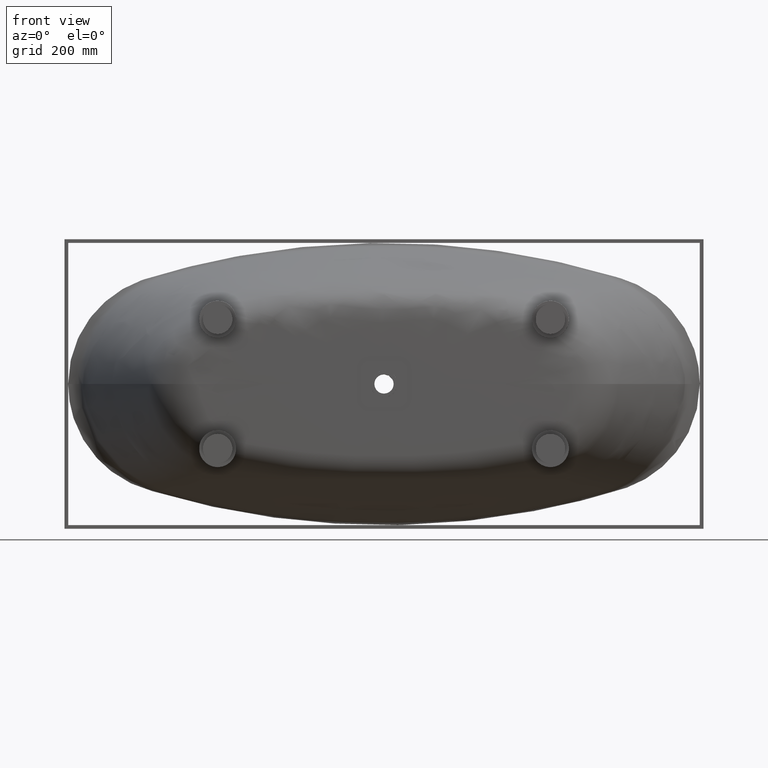
[diagram: clean part render]
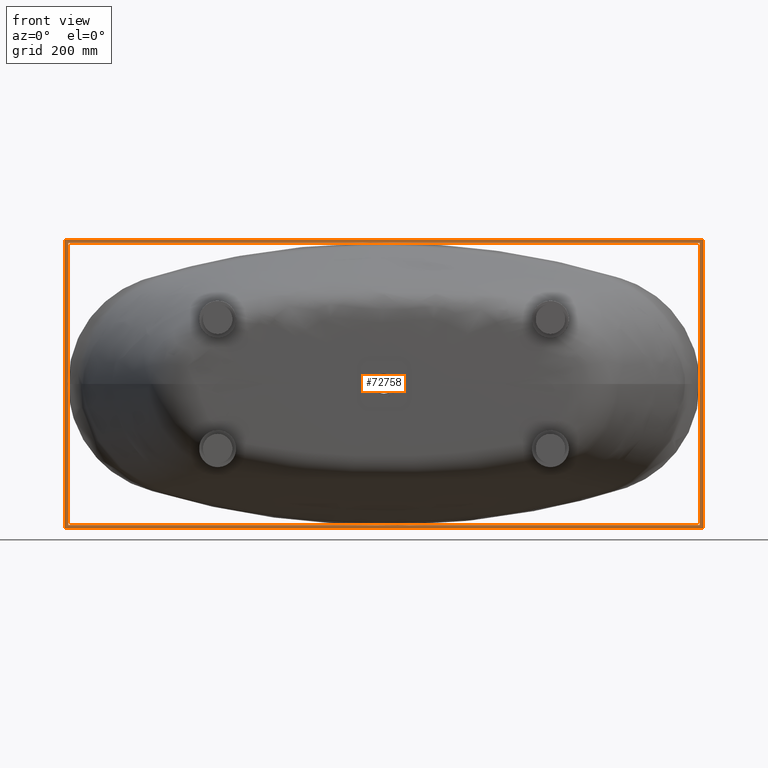
[diagram: same view with one face highlighted and labeled with its STEP entity id]
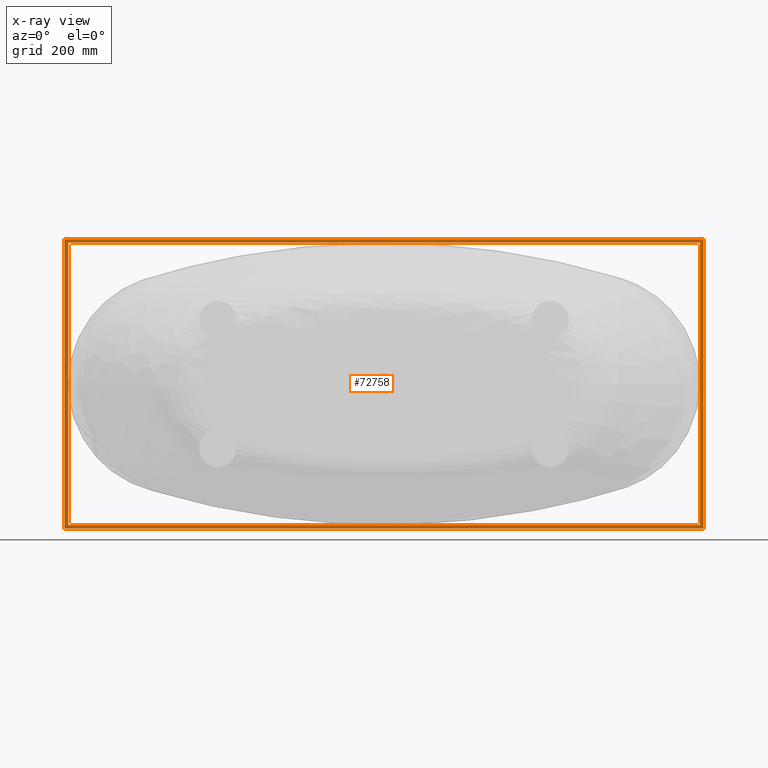
[diagram: x-ray of the same camera — body ghosted, the highlighted face saturated]
A machine part, front view. The second image highlights one B-rep face of the part: STEP entity #72758.
The next image is the same camera in x-ray: the body ghosted, the highlighted face saturated — about 0% of this face is hidden behind the body in this view.
In plain terms, the highlighted planar face has unit normal (0, 1, 0).
Its self-contained STEP definition (entity closure, byte-faithful):
#846 = AXIS2_PLACEMENT_3D ( 'NONE', #29183, #67569, #105965 ) ;
#1048 = LINE ( 'NONE', #39417, #97223 ) ;
#1491 = CARTESIAN_POINT ( 'NONE',  ( -853.9999999999996589, -10.00000000000000000, 381.4972507421642263 ) ) ;
#1769 = EDGE_CURVE ( 'NONE', #48401, #30927, #60306, .T. ) ;
#2376 = ORIENTED_EDGE ( 'NONE', *, *, #41879, .F. ) ;
#4881 = LINE ( 'NONE', #43252, #63090 ) ;
#7846 = LINE ( 'NONE', #46225, #33481 ) ;
#11422 = CARTESIAN_POINT ( 'NONE',  ( 863.9999999999994316, -10.00000000000000000, -391.4972507421642263 ) ) ;
#12481 = DIRECTION ( 'NONE',  ( -1.000000000000000000, 0.0000000000000000000, 0.0000000000000000000 ) ) ;
#19285 = LINE ( 'NONE', #57668, #77184 ) ;
#19316 = CARTESIAN_POINT ( 'NONE',  ( -863.9999999999996589, -10.00000000000000000, 391.4972507421642263 ) ) ;
#22365 = VECTOR ( 'NONE', #12481, 1000.000000000000000 ) ;
#24415 = EDGE_LOOP ( 'NONE', ( #50461, #56934, #41017, #84475 ) ) ;
#26351 = LINE ( 'NONE', #64735, #105887 ) ;
#29183 = CARTESIAN_POINT ( 'NONE',  ( 0.0000000000000000000, -10.00000000000000000, 0.0000000000000000000 ) ) ;
#30927 = VERTEX_POINT ( 'NONE', #108143 ) ;
#33202 = CARTESIAN_POINT ( 'NONE',  ( 853.9999999999994316, -10.00000000000000000, 381.4972507421642263 ) ) ;
#33481 = VECTOR ( 'NONE', #84605, 1000.000000000000000 ) ;
#38621 = FACE_BOUND ( 'NONE', #24415, .T. ) ;
#38780 = LINE ( 'NONE', #77165, #89717 ) ;
#39417 = CARTESIAN_POINT ( 'NONE',  ( 853.9999999999994316, -10.00000000000000000, 381.4972507421642263 ) ) ;
#41017 = ORIENTED_EDGE ( 'NONE', *, *, #106576, .T. ) ;
#41879 = EDGE_CURVE ( 'NONE', #30927, #97410, #105523, .T. ) ;
#43252 = CARTESIAN_POINT ( 'NONE',  ( 853.9999999999994316, -10.00000000000000000, -381.4972507421642263 ) ) ;
#44342 = EDGE_CURVE ( 'NONE', #54606, #119148, #1048, .T. ) ;
#44942 = CARTESIAN_POINT ( 'NONE',  ( 863.9999999999994316, -10.00000000000000000, 391.4972507421642263 ) ) ;
#46225 = CARTESIAN_POINT ( 'NONE',  ( -853.9999999999996589, -10.00000000000000000, 381.4972507421642263 ) ) ;
#46778 = CARTESIAN_POINT ( 'NONE',  ( 853.9999999999994316, -10.00000000000000000, -381.4972507421642263 ) ) ;
#48401 = VERTEX_POINT ( 'NONE', #11422 ) ;
#50461 = ORIENTED_EDGE ( 'NONE', *, *, #57427, .T. ) ;
#54606 = VERTEX_POINT ( 'NONE', #33202 ) ;
#56934 = ORIENTED_EDGE ( 'NONE', *, *, #89580, .T. ) ;
#57427 = EDGE_CURVE ( 'NONE', #119148, #79135, #4881, .T. ) ;
#57668 = CARTESIAN_POINT ( 'NONE',  ( 863.9999999999994316, -10.00000000000000000, 391.4972507421642263 ) ) ;
#57699 = DIRECTION ( 'NONE',  ( -0.0000000000000000000, -0.0000000000000000000, 1.000000000000000000 ) ) ;
#60306 = LINE ( 'NONE', #98697, #22365 ) ;
#63090 = VECTOR ( 'NONE', #81640, 1000.000000000000000 ) ;
#64735 = CARTESIAN_POINT ( 'NONE',  ( 853.9999999999994316, -10.00000000000000000, 381.4972507421642263 ) ) ;
#67569 = DIRECTION ( 'NONE',  ( 0.0000000000000000000, 1.000000000000000000, 0.0000000000000000000 ) ) ;
#68674 = EDGE_CURVE ( 'NONE', #97410, #108774, #19285, .T. ) ;
#72758 = ADVANCED_FACE ( 'NONE', ( #38621, #77006 ), #115403, .F. ) ;
#76720 = VERTEX_POINT ( 'NONE', #1491 ) ;
#77006 = FACE_OUTER_BOUND ( 'NONE', #78277, .T. ) ;
#77165 = CARTESIAN_POINT ( 'NONE',  ( 863.9999999999994316, -10.00000000000000000, 391.4972507421642263 ) ) ;
#77184 = VECTOR ( 'NONE', #96052, 1000.000000000000000 ) ;
#77806 = DIRECTION ( 'NONE',  ( 0.0000000000000000000, 0.0000000000000000000, -1.000000000000000000 ) ) ;
#78277 = EDGE_LOOP ( 'NONE', ( #109971, #78697, #2376, #107648 ) ) ;
#78697 = ORIENTED_EDGE ( 'NONE', *, *, #68674, .F. ) ;
#79135 = VERTEX_POINT ( 'NONE', #86616 ) ;
#79711 = EDGE_CURVE ( 'NONE', #108774, #48401, #38780, .T. ) ;
#81640 = DIRECTION ( 'NONE',  ( -1.000000000000000000, 0.0000000000000000000, 0.0000000000000000000 ) ) ;
#84475 = ORIENTED_EDGE ( 'NONE', *, *, #44342, .T. ) ;
#84605 = DIRECTION ( 'NONE',  ( -0.0000000000000000000, -0.0000000000000000000, 1.000000000000000000 ) ) ;
#86616 = CARTESIAN_POINT ( 'NONE',  ( -853.9999999999996589, -10.00000000000000000, -381.4972507421642263 ) ) ;
#87165 = VECTOR ( 'NONE', #57699, 1000.000000000000000 ) ;
#89580 = EDGE_CURVE ( 'NONE', #79135, #76720, #7846, .T. ) ;
#89717 = VECTOR ( 'NONE', #115562, 1000.000000000000000 ) ;
#96052 = DIRECTION ( 'NONE',  ( 1.000000000000000000, -0.0000000000000000000, -0.0000000000000000000 ) ) ;
#97223 = VECTOR ( 'NONE', #77806, 1000.000000000000000 ) ;
#97410 = VERTEX_POINT ( 'NONE', #121153 ) ;
#98697 = CARTESIAN_POINT ( 'NONE',  ( 863.9999999999994316, -10.00000000000000000, -391.4972507421642263 ) ) ;
#103127 = DIRECTION ( 'NONE',  ( 1.000000000000000000, -0.0000000000000000000, -0.0000000000000000000 ) ) ;
#105523 = LINE ( 'NONE', #19316, #87165 ) ;
#105887 = VECTOR ( 'NONE', #103127, 1000.000000000000000 ) ;
#105965 = DIRECTION ( 'NONE',  ( 0.0000000000000000000, -0.0000000000000000000, 1.000000000000000000 ) ) ;
#106576 = EDGE_CURVE ( 'NONE', #76720, #54606, #26351, .T. ) ;
#107648 = ORIENTED_EDGE ( 'NONE', *, *, #1769, .F. ) ;
#108143 = CARTESIAN_POINT ( 'NONE',  ( -863.9999999999996589, -10.00000000000000000, -391.4972507421642263 ) ) ;
#108774 = VERTEX_POINT ( 'NONE', #44942 ) ;
#109971 = ORIENTED_EDGE ( 'NONE', *, *, #79711, .F. ) ;
#115403 = PLANE ( 'NONE',  #846 ) ;
#115562 = DIRECTION ( 'NONE',  ( 0.0000000000000000000, 0.0000000000000000000, -1.000000000000000000 ) ) ;
#119148 = VERTEX_POINT ( 'NONE', #46778 ) ;
#121153 = CARTESIAN_POINT ( 'NONE',  ( -863.9999999999996589, -10.00000000000000000, 391.4972507421642263 ) ) ;